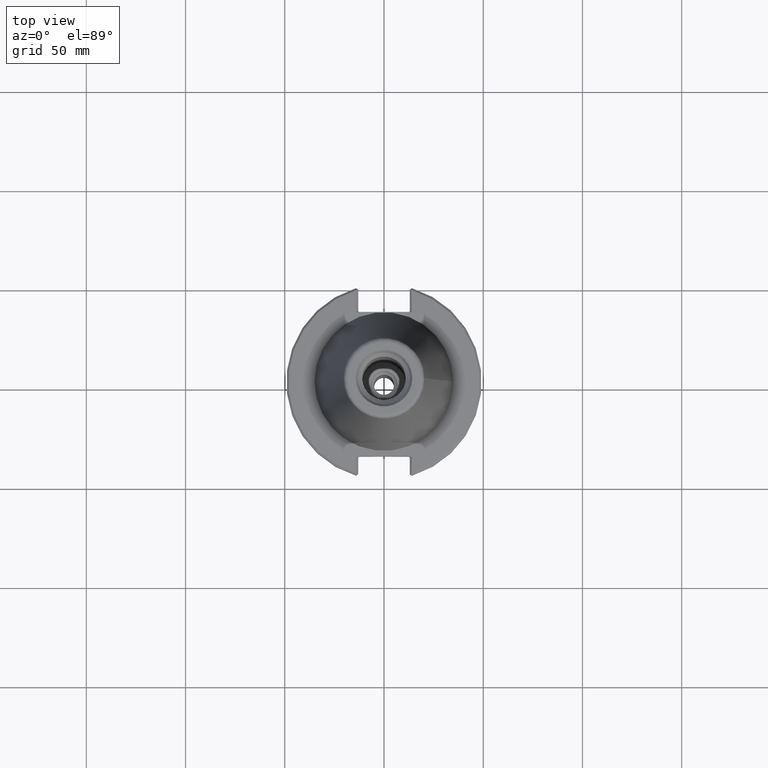
[diagram: clean part render]
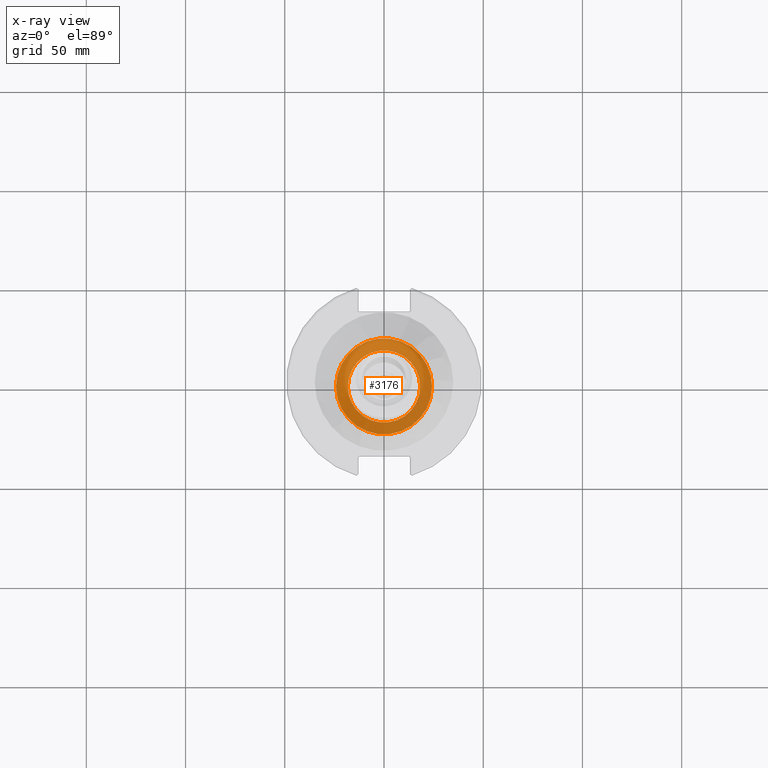
[diagram: x-ray — body ghosted, one internal face saturated and labeled with its STEP entity id]
A machine part, top view, then the same camera in x-ray: the body is ghosted and one INTERNAL B-rep face — a face not visible from any outside direction — is saturated and labeled: STEP entity #3176.
In plain terms, the highlighted conical surface has half-angle 60 deg.
Its self-contained STEP definition (entity closure, byte-faithful):
#336=CONICAL_SURFACE('',#3453,18.2,1.0471975511966);
#844=ORIENTED_EDGE('',*,*,#1133,.F.);
#845=ORIENTED_EDGE('',*,*,#1134,.T.);
#1133=EDGE_CURVE('',#1339,#1339,#1471,.F.);
#1134=EDGE_CURVE('',#1340,#1340,#1472,.F.);
#1339=VERTEX_POINT('',#4959);
#1340=VERTEX_POINT('',#4961);
#1471=CIRCLE('',#3454,18.2);
#1472=CIRCLE('',#3455,24.188);
#1685=EDGE_LOOP('',(#844));
#1686=EDGE_LOOP('',(#845));
#1919=FACE_BOUND('',#1685,.T.);
#1920=FACE_BOUND('',#1686,.T.);
#3176=ADVANCED_FACE('',(#1919,#1920),#336,.T.);
#3453=AXIS2_PLACEMENT_3D('',#4957,#4068,#4069);
#3454=AXIS2_PLACEMENT_3D('',#4958,#4070,#4071);
#3455=AXIS2_PLACEMENT_3D('',#4960,#4072,#4073);
#4068=DIRECTION('',(0.,0.,1.));
#4069=DIRECTION('',(1.,0.,0.));
#4070=DIRECTION('',(0.,0.,1.));
#4071=DIRECTION('',(1.,0.,0.));
#4072=DIRECTION('',(0.,0.,1.));
#4073=DIRECTION('',(1.,0.,0.));
#4957=CARTESIAN_POINT('',(0.,0.,-144.4));
#4958=CARTESIAN_POINT('',(0.,0.,-144.4));
#4959=CARTESIAN_POINT('',(18.2,0.,-144.4));
#4960=CARTESIAN_POINT('',(0.,0.,-140.942826588093));
#4961=CARTESIAN_POINT('',(24.188,0.,-140.942826588093));